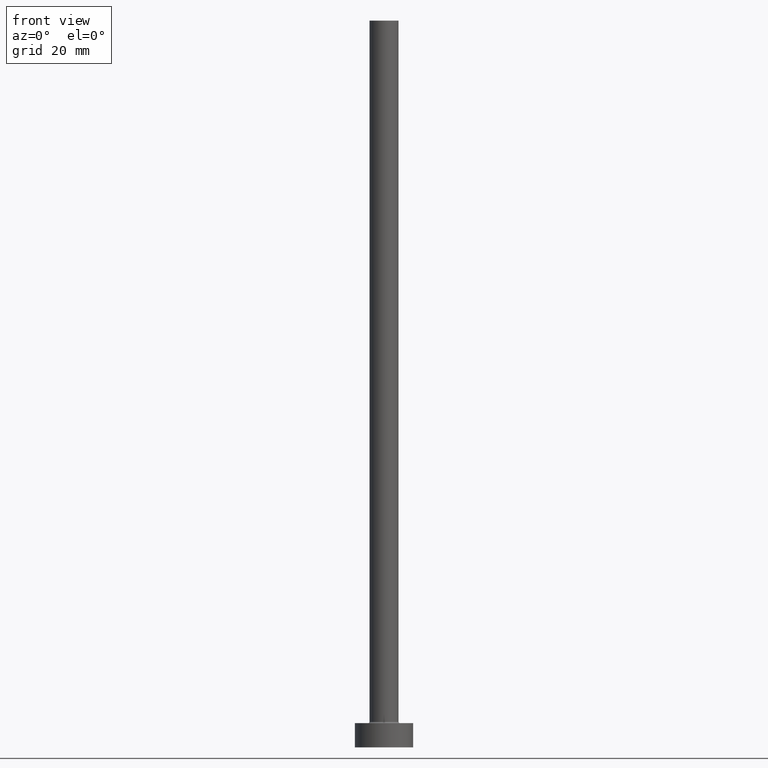
[diagram: clean part render]
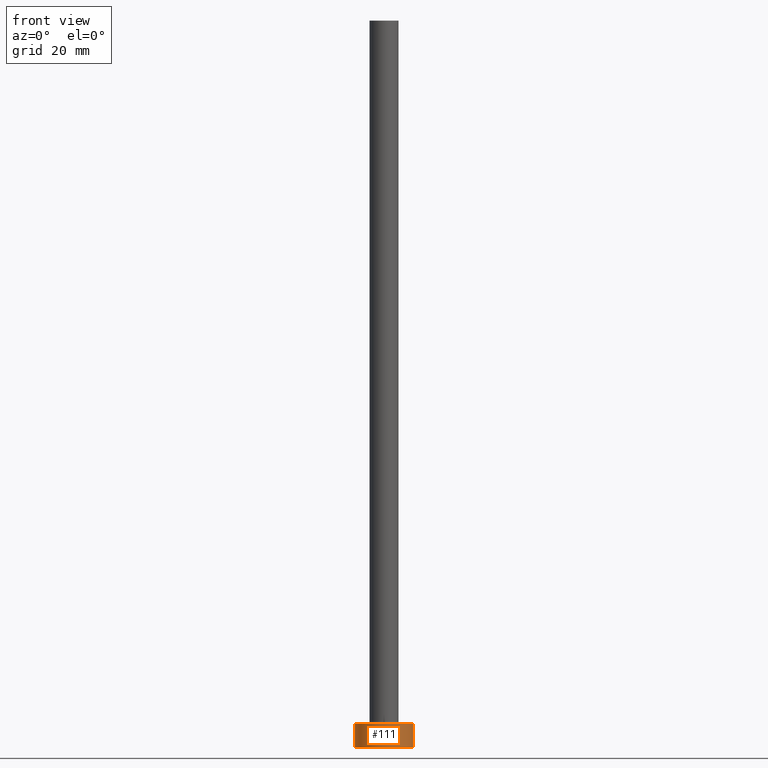
[diagram: same view with one face highlighted and labeled with its STEP entity id]
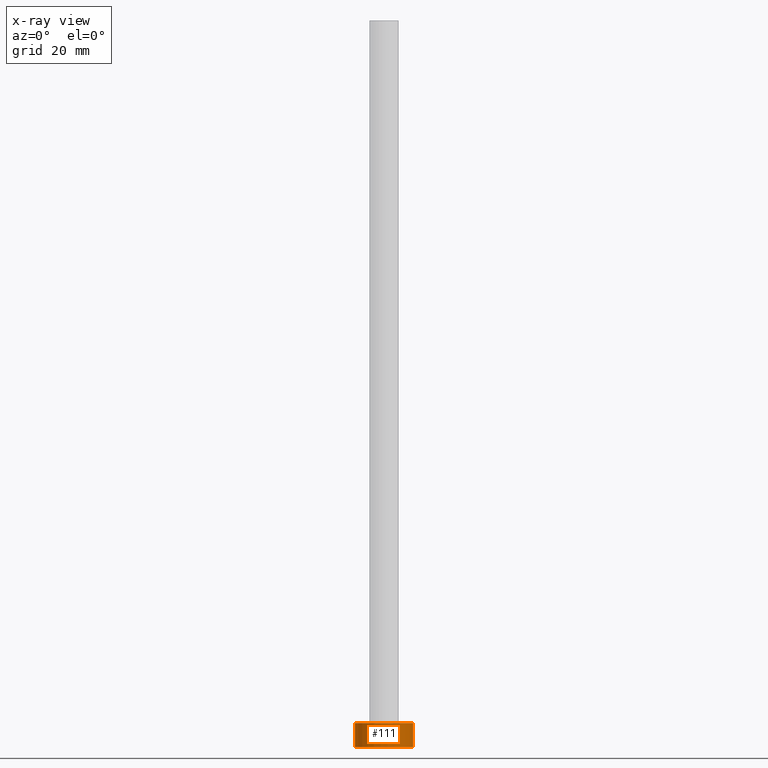
[diagram: x-ray of the same camera — body ghosted, the highlighted face saturated]
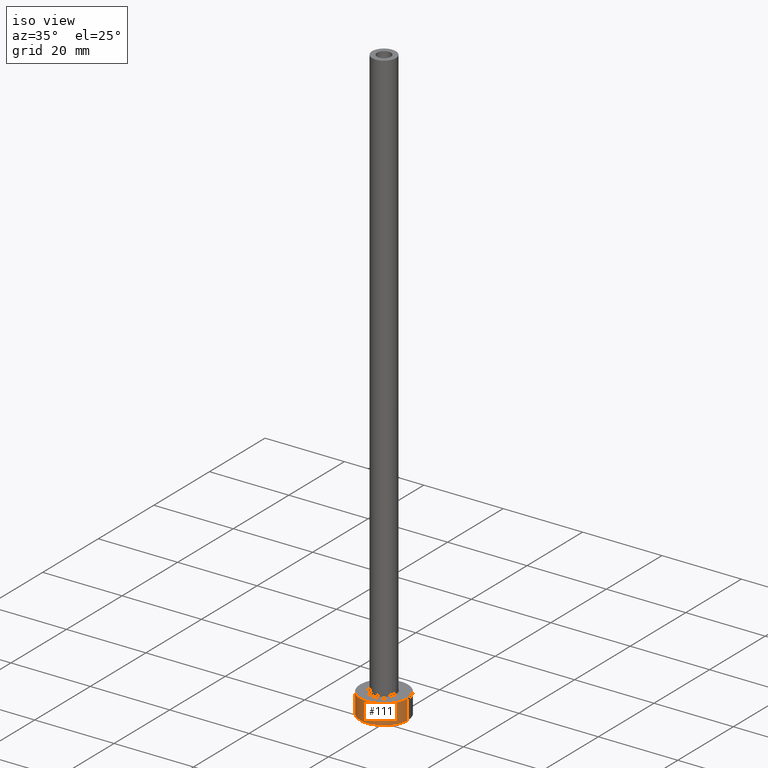
[diagram: same view with one face highlighted and labeled with its STEP entity id]
A machine part, front view. The second image highlights one B-rep face of the part: STEP entity #111.
The next image is the same camera in x-ray: the body ghosted, the highlighted face saturated — about 0% of this face is hidden behind the body in this view.
A second angle (iso view) of the same face is appended — the face is thin or edge-on in the first view.
In plain terms, the highlighted cylindrical surface (edge-blend (fillet) strip) has radius 6 mm, axis along (-0, -0, -1).
Its self-contained STEP definition (entity closure, byte-faithful):
#18 = ORIENTED_EDGE ( 'NONE', *, *, #145, .T. ) ;
#36 = DIRECTION ( 'NONE',  ( 0.000000000000000000, 0.000000000000000000, 1.000000000000000000 ) ) ;
#50 = VECTOR ( 'NONE', #380, 1000.000000000000000 ) ;
#64 = DIRECTION ( 'NONE',  ( -1.000000000000000000, 0.000000000000000000, 0.000000000000000000 ) ) ;
#66 = LINE ( 'NONE', #244, #50 ) ;
#80 = EDGE_LOOP ( 'NONE', ( #266, #262, #18, #110 ) ) ;
#98 = DIRECTION ( 'NONE',  ( -0.000000000000000000, -0.000000000000000000, -1.000000000000000000 ) ) ;
#101 = AXIS2_PLACEMENT_3D ( 'NONE', #383, #36, #459 ) ;
#110 = ORIENTED_EDGE ( 'NONE', *, *, #386, .T. ) ;
#111 = ADVANCED_FACE ( 'NONE', ( #172 ), #170, .T. ) ;
#134 = EDGE_CURVE ( 'NONE', #241, #395, #276, .T. ) ;
#142 = CARTESIAN_POINT ( 'NONE',  ( 0.000000000000000000, 0.000000000000000000, 5.000000000000000000 ) ) ;
#145 = EDGE_CURVE ( 'NONE', #241, #330, #66, .T. ) ;
#163 = EDGE_CURVE ( 'NONE', #395, #398, #327, .T. ) ;
#170 = CYLINDRICAL_SURFACE ( 'NONE', #376, 6.000000000000000888 ) ;
#172 = FACE_OUTER_BOUND ( 'NONE', #80, .T. ) ;
#182 = CARTESIAN_POINT ( 'NONE',  ( -6.000000000000000888, 0.000000000000000000, 0.000000000000000000 ) ) ;
#209 = CARTESIAN_POINT ( 'NONE',  ( 6.000000000000000888, 7.347880794884120722E-16, 5.000000000000000000 ) ) ;
#241 = VERTEX_POINT ( 'NONE', #304 ) ;
#244 = CARTESIAN_POINT ( 'NONE',  ( -6.000000000000000888, 0.000000000000000000, 5.000000000000000000 ) ) ;
#253 = AXIS2_PLACEMENT_3D ( 'NONE', #142, #281, #420 ) ;
#262 = ORIENTED_EDGE ( 'NONE', *, *, #134, .F. ) ;
#266 = ORIENTED_EDGE ( 'NONE', *, *, #163, .F. ) ;
#276 = CIRCLE ( 'NONE', #253, 6.000000000000000888 ) ;
#281 = DIRECTION ( 'NONE',  ( 0.000000000000000000, 0.000000000000000000, 1.000000000000000000 ) ) ;
#295 = DIRECTION ( 'NONE',  ( -0.000000000000000000, -0.000000000000000000, -1.000000000000000000 ) ) ;
#299 = CARTESIAN_POINT ( 'NONE',  ( 6.000000000000000888, 7.347880794884120722E-16, 5.000000000000000000 ) ) ;
#304 = CARTESIAN_POINT ( 'NONE',  ( -6.000000000000000888, 0.000000000000000000, 5.000000000000000000 ) ) ;
#327 = LINE ( 'NONE', #299, #447 ) ;
#330 = VERTEX_POINT ( 'NONE', #182 ) ;
#343 = CIRCLE ( 'NONE', #101, 6.000000000000000888 ) ;
#373 = CARTESIAN_POINT ( 'NONE',  ( 0.000000000000000000, 0.000000000000000000, 5.000000000000000000 ) ) ;
#376 = AXIS2_PLACEMENT_3D ( 'NONE', #373, #98, #64 ) ;
#380 = DIRECTION ( 'NONE',  ( -0.000000000000000000, -0.000000000000000000, -1.000000000000000000 ) ) ;
#383 = CARTESIAN_POINT ( 'NONE',  ( 0.000000000000000000, 0.000000000000000000, 0.000000000000000000 ) ) ;
#386 = EDGE_CURVE ( 'NONE', #330, #398, #343, .T. ) ;
#395 = VERTEX_POINT ( 'NONE', #209 ) ;
#398 = VERTEX_POINT ( 'NONE', #429 ) ;
#420 = DIRECTION ( 'NONE',  ( 1.000000000000000000, 0.000000000000000000, 0.000000000000000000 ) ) ;
#429 = CARTESIAN_POINT ( 'NONE',  ( 6.000000000000000888, 7.347880794884120722E-16, 0.000000000000000000 ) ) ;
#447 = VECTOR ( 'NONE', #295, 1000.000000000000000 ) ;
#459 = DIRECTION ( 'NONE',  ( 1.000000000000000000, 0.000000000000000000, 0.000000000000000000 ) ) ;